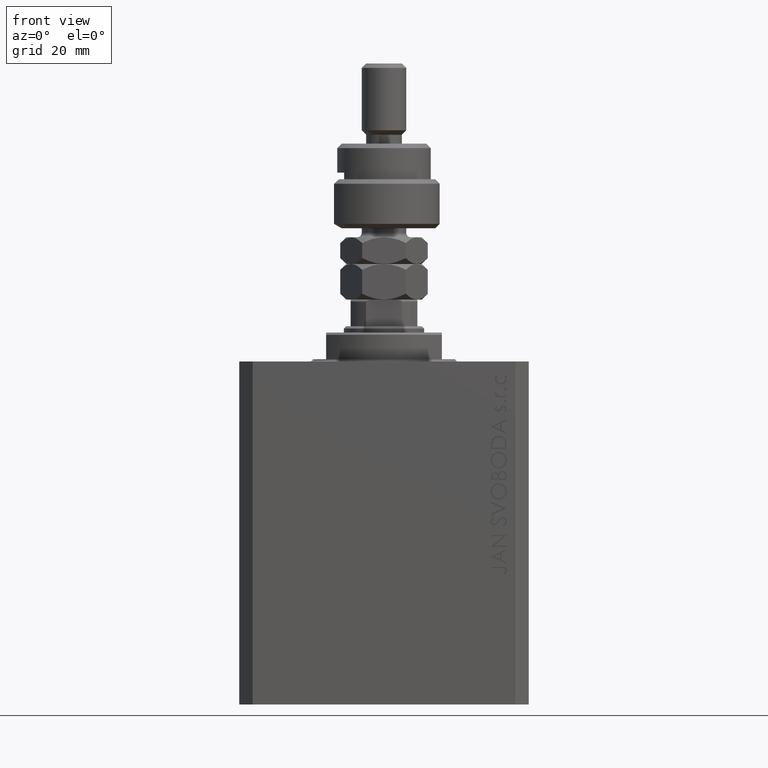
[diagram: clean part render]
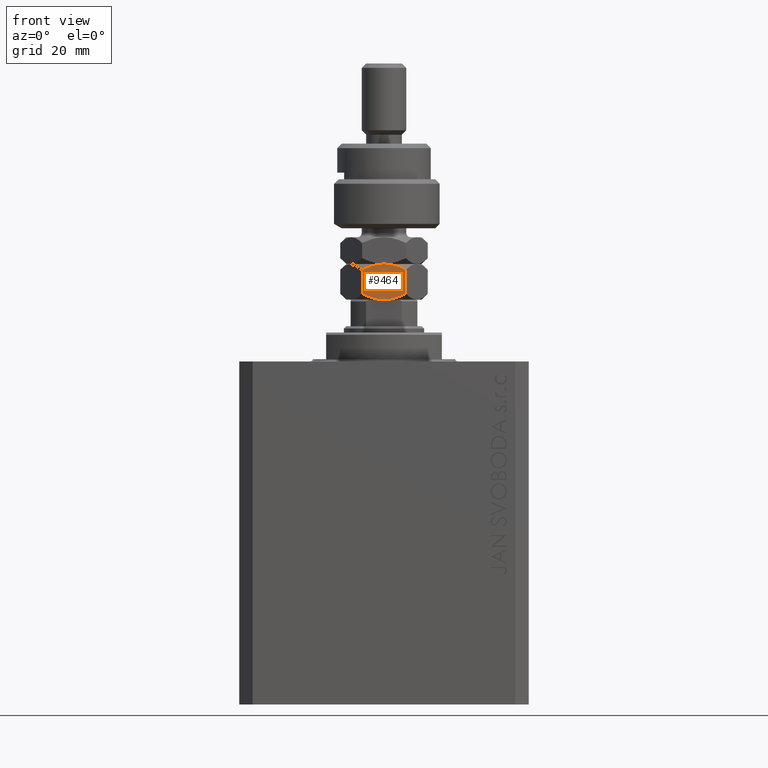
[diagram: same view with one face highlighted and labeled with its STEP entity id]
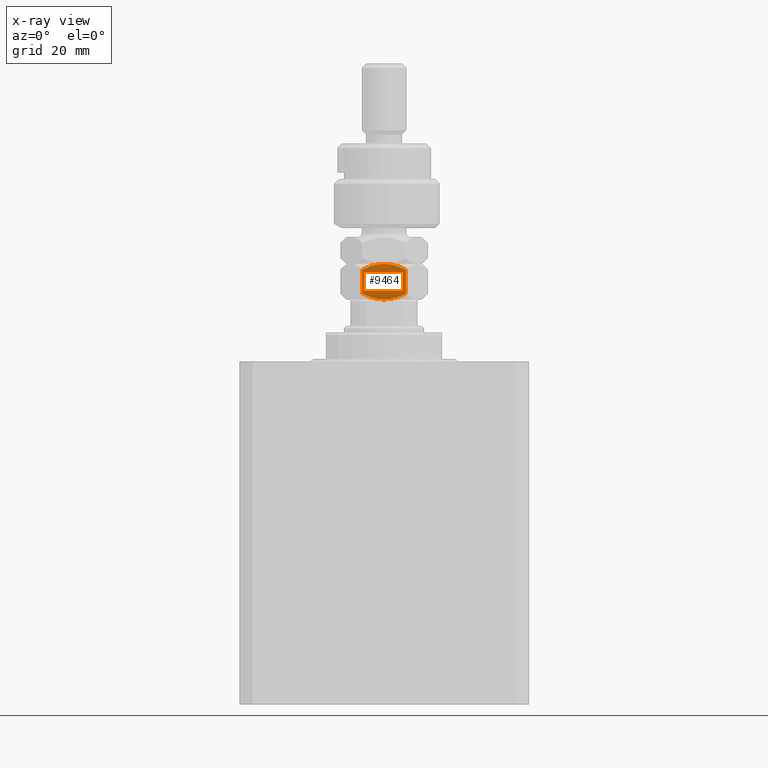
[diagram: x-ray of the same camera — body ghosted, the highlighted face saturated]
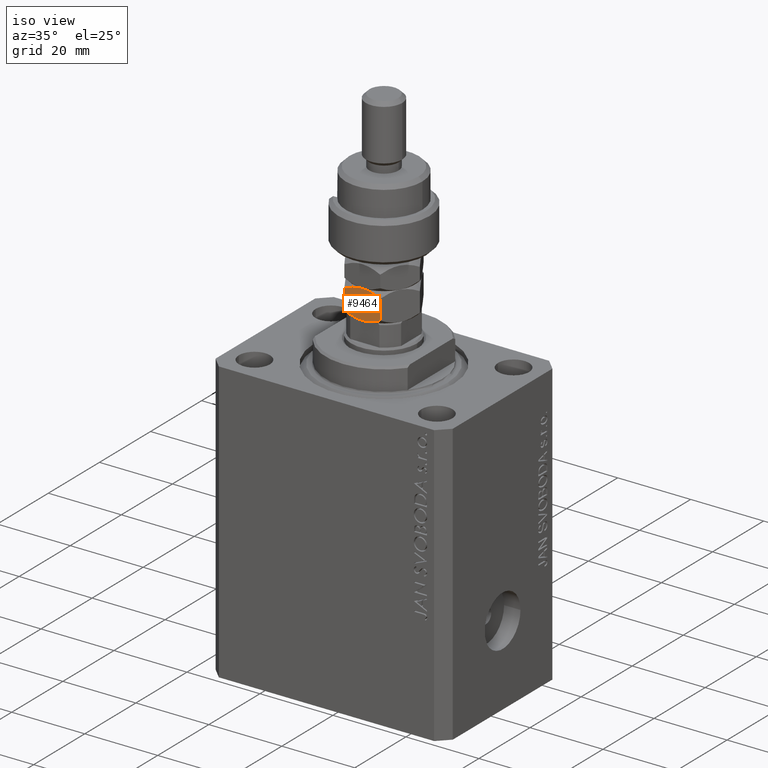
[diagram: same view with one face highlighted and labeled with its STEP entity id]
A machine part, front view. The second image highlights one B-rep face of the part: STEP entity #9464.
The next image is the same camera in x-ray: the body ghosted, the highlighted face saturated — about 0% of this face is hidden behind the body in this view.
A second angle (iso view) of the same face is appended — the face is thin or edge-on in the first view.
In plain terms, the highlighted planar face has unit normal (0, 1, 0).
Its self-contained STEP definition (entity closure, byte-faithful):
#605 = CARTESIAN_POINT ( 'NONE',  ( -1.010883460254179403E-15, -9.814954576223637872, 1.314954576223630323 ) ) ;
#914 = B_SPLINE_CURVE_WITH_KNOTS ( 'NONE', 3,
 ( #16043, #9529, #38828, #46034, #16268, #42194, #9063, #2070 ),
 .UNSPECIFIED., .F., .F.,
 ( 4, 2, 2, 4 ),
 ( 2.544313836662128767E-07, 0.002543776790731947998, 0.003815537970406090475, 0.005087299150080232951 ),
 .UNSPECIFIED. ) ;
#1318 = CARTESIAN_POINT ( 'NONE',  ( -9.757819552369539906E-16, -9.814954576223637872, 8.000000000000000000 ) ) ;
#2070 = CARTESIAN_POINT ( 'NONE',  ( 4.249999999999994671, -7.361215932167728404, 8.000000000000000000 ) ) ;
#3386 = VERTEX_POINT ( 'NONE', #37655 ) ;
#3535 = CARTESIAN_POINT ( 'NONE',  ( 7.149107353189445568, -5.687415521394182605, 7.399061587263878970 ) ) ;
#3562 = VERTEX_POINT ( 'NONE', #605 ) ;
#3713 = DIRECTION ( 'NONE',  ( -0.8660254037844389297, -0.4999999999999995559, 0.000000000000000000 ) ) ;
#3783 = EDGE_CURVE ( 'NONE', #17299, #3562, #34243, .T. ) ;
#4828 = EDGE_CURVE ( 'NONE', #18865, #11016, #41515, .T. ) ;
#5267 = CARTESIAN_POINT ( 'NONE',  ( 4.249999999999997335, -7.361215932167732845, 0.000000000000000000 ) ) ;
#5273 = VERTEX_POINT ( 'NONE', #16291 ) ;
#5420 = FACE_OUTER_BOUND ( 'NONE', #6808, .T. ) ;
#6340 = EDGE_CURVE ( 'NONE', #3386, #5273, #37659, .T. ) ;
#6808 = EDGE_LOOP ( 'NONE', ( #7932, #39876, #45620, #15509, #18257, #21174 ) ) ;
#7932 = ORIENTED_EDGE ( 'NONE', *, *, #4828, .F. ) ;
#8665 = LINE ( 'NONE', #16580, #37418 ) ;
#9063 = CARTESIAN_POINT ( 'NONE',  ( 3.877770021349439045, -7.576123010542081815, 8.000000000000003553 ) ) ;
#9464 = ADVANCED_FACE ( 'NONE', ( #5420 ), #41944, .F. ) ;
#9529 = CARTESIAN_POINT ( 'NONE',  ( 0.6664608216042839928, -9.430173241466070166, 7.069826758533944933 ) ) ;
#10461 = CARTESIAN_POINT ( 'NONE',  ( -9.757819552369539906E-16, -9.814954576223637872, 8.000000000000000000 ) ) ;
#11016 = VERTEX_POINT ( 'NONE', #39347 ) ;
#11091 = AXIS2_PLACEMENT_3D ( 'NONE', #10461, #43122, #3713 ) ;
#12260 = CARTESIAN_POINT ( 'NONE',  ( 7.833539178395718672, -5.292258622869395523, 0.9301732414660633941 ) ) ;
#12560 = CARTESIAN_POINT ( 'NONE',  ( -1.010883460254179403E-15, -9.814954576223637872, 1.314954576223630323 ) ) ;
#15509 = ORIENTED_EDGE ( 'NONE', *, *, #39763, .F. ) ;
#15994 = DIRECTION ( 'NONE',  ( -0.000000000000000000, -0.000000000000000000, -1.000000000000000000 ) ) ;
#16043 = CARTESIAN_POINT ( 'NONE',  ( -7.581970720220202129E-16, -9.814954576223637872, 6.685045423776371010 ) ) ;
#16187 = CARTESIAN_POINT ( 'NONE',  ( -7.581970720220202129E-16, -9.814954576223637872, 6.685045423776371010 ) ) ;
#16268 = CARTESIAN_POINT ( 'NONE',  ( 2.766281260884825066, -8.217841345597570069, 7.839178292058168296 ) ) ;
#16291 = CARTESIAN_POINT ( 'NONE',  ( 8.500000000000001776, -4.907477288111821601, 6.685045423776368345 ) ) ;
#16580 = CARTESIAN_POINT ( 'NONE',  ( 8.500000000000001776, -4.907477288111821601, 8.000000000000000000 ) ) ;
#16630 = CARTESIAN_POINT ( 'NONE',  ( 4.249999999999997335, -7.361215932167732845, 0.000000000000000000 ) ) ;
#17299 = VERTEX_POINT ( 'NONE', #16187 ) ;
#17728 = CARTESIAN_POINT ( 'NONE',  ( 7.834310611062749174, -5.291813236011422283, 7.069381371676068504 ) ) ;
#18257 = ORIENTED_EDGE ( 'NONE', *, *, #3783, .T. ) ;
#18428 = CARTESIAN_POINT ( 'NONE',  ( 8.500000000000001776, -4.907477288111821601, 6.685045423776368345 ) ) ;
#18865 = VERTEX_POINT ( 'NONE', #44125 ) ;
#19700 = CARTESIAN_POINT ( 'NONE',  ( 8.500000000000001776, -4.907477288111817160, 1.314954576223629878 ) ) ;
#19998 = CARTESIAN_POINT ( 'NONE',  ( 2.784079206026082609, -8.207565697179241226, 0.1305202873832139177 ) ) ;
#21174 = ORIENTED_EDGE ( 'NONE', *, *, #30561, .F. ) ;
#23320 = CARTESIAN_POINT ( 'NONE',  ( 5.733718739115172269, -6.504590518737895621, 0.1608217079418340634 ) ) ;
#29494 = CARTESIAN_POINT ( 'NONE',  ( 4.249999999999994671, -7.361215932167728404, 8.000000000000000000 ) ) ;
#30087 = B_SPLINE_CURVE_WITH_KNOTS ( 'NONE', 3,
 ( #16630, #38012, #19998, #35118, #42560, #12560 ),
 .UNSPECIFIED., .F., .F.,
 ( 4, 2, 4 ),
 ( 0.005087299150080244227, 0.007613005268011863516, 0.01013871138594348367 ),
 .UNSPECIFIED. ) ;
#30561 = EDGE_CURVE ( 'NONE', #11016, #3562, #30087, .T. ) ;
#31243 = DIRECTION ( 'NONE',  ( -0.000000000000000000, -0.000000000000000000, -1.000000000000000000 ) ) ;
#31809 = EDGE_CURVE ( 'NONE', #5273, #18865, #8665, .T. ) ;
#33142 = VECTOR ( 'NONE', #15994, 1000.000000000000000 ) ;
#34243 = LINE ( 'NONE', #1318, #33142 ) ;
#35118 = CARTESIAN_POINT ( 'NONE',  ( 1.350892646810552433, -9.035016342941277756, 0.6009384127361203642 ) ) ;
#35977 = CARTESIAN_POINT ( 'NONE',  ( 5.715920793973914726, -6.514866167156222687, 7.869479712616787026 ) ) ;
#36448 = CARTESIAN_POINT ( 'NONE',  ( 4.989245346831671313, -6.934412432177284202, 8.000000000000001776 ) ) ;
#37418 = VECTOR ( 'NONE', #31243, 1000.000000000000000 ) ;
#37655 = CARTESIAN_POINT ( 'NONE',  ( 4.249999999999994671, -7.361215932167728404, 8.000000000000000000 ) ) ;
#37659 = B_SPLINE_CURVE_WITH_KNOTS ( 'NONE', 3,
 ( #29494, #36448, #35977, #3535, #17728, #18428 ),
 .UNSPECIFIED., .F., .F.,
 ( 4, 2, 4 ),
 ( 0.005087299150080232951, 0.007613005268011856577, 0.01013871138594348020 ),
 .UNSPECIFIED. ) ;
#38012 = CARTESIAN_POINT ( 'NONE',  ( 3.510754653168322914, -7.788019432158174382, -1.295960409299079124E-15 ) ) ;
#38649 = CARTESIAN_POINT ( 'NONE',  ( 7.151994807070145121, -5.685748449118888104, 0.6032092124201289263 ) ) ;
#38828 = CARTESIAN_POINT ( 'NONE',  ( 1.348005192929855101, -9.036683415216574033, 7.396790787579876181 ) ) ;
#38886 = CARTESIAN_POINT ( 'NONE',  ( 5.000029324638989081, -6.928186299687297378, 0.03373674959836757414 ) ) ;
#39347 = CARTESIAN_POINT ( 'NONE',  ( 4.249999999999997335, -7.361215932167732845, 0.000000000000000000 ) ) ;
#39763 = EDGE_CURVE ( 'NONE', #17299, #3386, #914, .T. ) ;
#39876 = ORIENTED_EDGE ( 'NONE', *, *, #31809, .F. ) ;
#41515 = B_SPLINE_CURVE_WITH_KNOTS ( 'NONE', 3,
 ( #19700, #12260, #38649, #41787, #23320, #38886, #41547, #5267 ),
 .UNSPECIFIED., .F., .F.,
 ( 4, 2, 2, 4 ),
 ( 2.544313836654547822E-07, 0.002543776790731953636, 0.003815537970406099148, 0.005087299150080244227 ),
 .UNSPECIFIED. ) ;
#41547 = CARTESIAN_POINT ( 'NONE',  ( 4.622229978650556070, -7.146308853793384763, -1.291725244562808017E-15 ) ) ;
#41787 = CARTESIAN_POINT ( 'NONE',  ( 6.092930036521920556, -6.297199779484154547, 0.2536240893246553552 ) ) ;
#41944 = PLANE ( 'NONE',  #11091 ) ;
#42194 = CARTESIAN_POINT ( 'NONE',  ( 3.499970675361007366, -7.794245564648166535, 7.966263250401633300 ) ) ;
#42560 = CARTESIAN_POINT ( 'NONE',  ( 0.6656893889372494932, -9.430618628324040742, 0.9306186283239298307 ) ) ;
#43122 = DIRECTION ( 'NONE',  ( -0.4999999999999995559, 0.8660254037844389297, 0.000000000000000000 ) ) ;
#44125 = CARTESIAN_POINT ( 'NONE',  ( 8.500000000000001776, -4.907477288111817160, 1.314954576223629878 ) ) ;
#45620 = ORIENTED_EDGE ( 'NONE', *, *, #6340, .F. ) ;
#46034 = CARTESIAN_POINT ( 'NONE',  ( 2.407069963478076335, -8.425232084851307590, 7.746375910675348031 ) ) ;